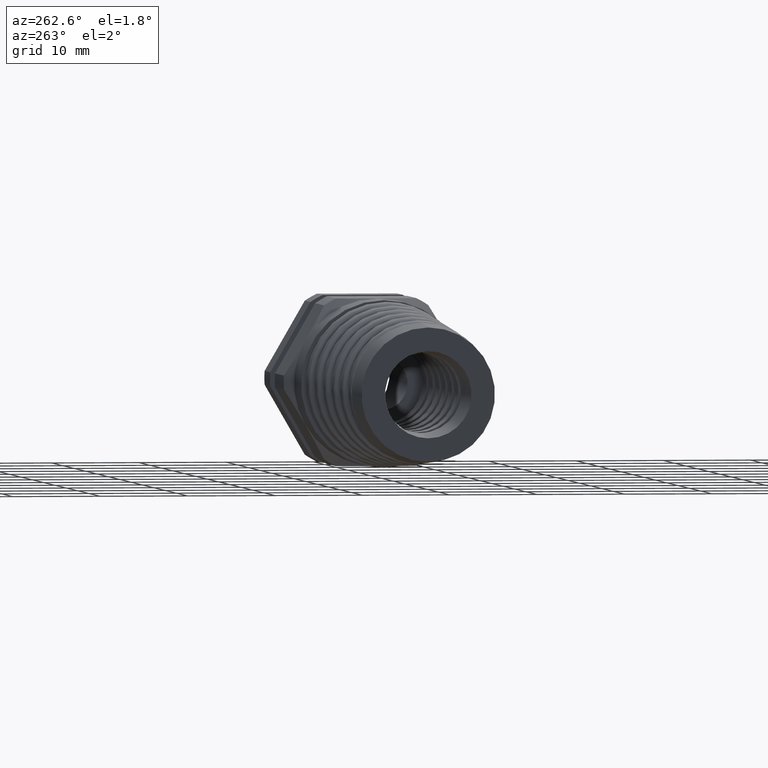
[diagram: clean part render]
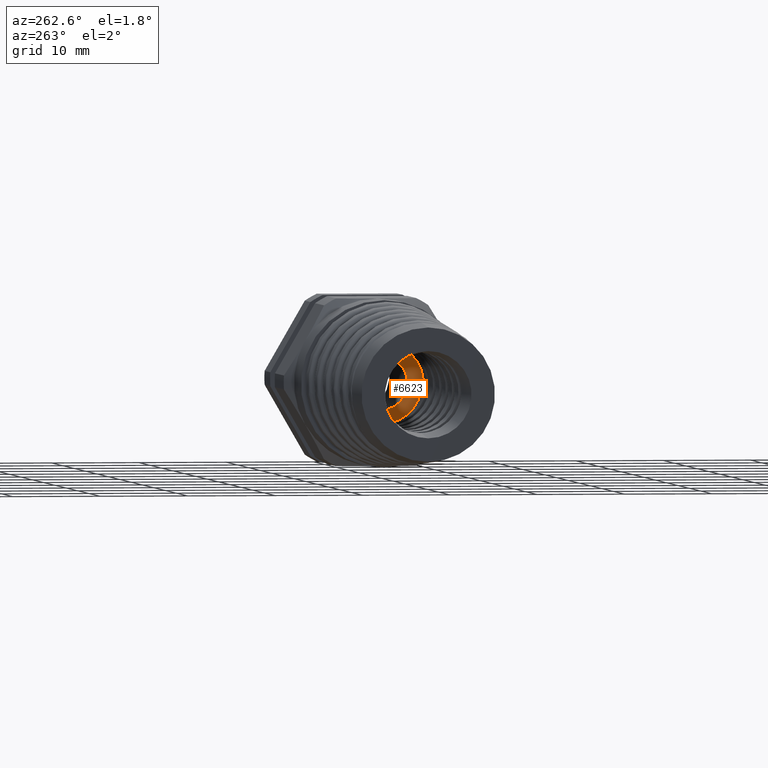
[diagram: same view with one face highlighted and labeled with its STEP entity id]
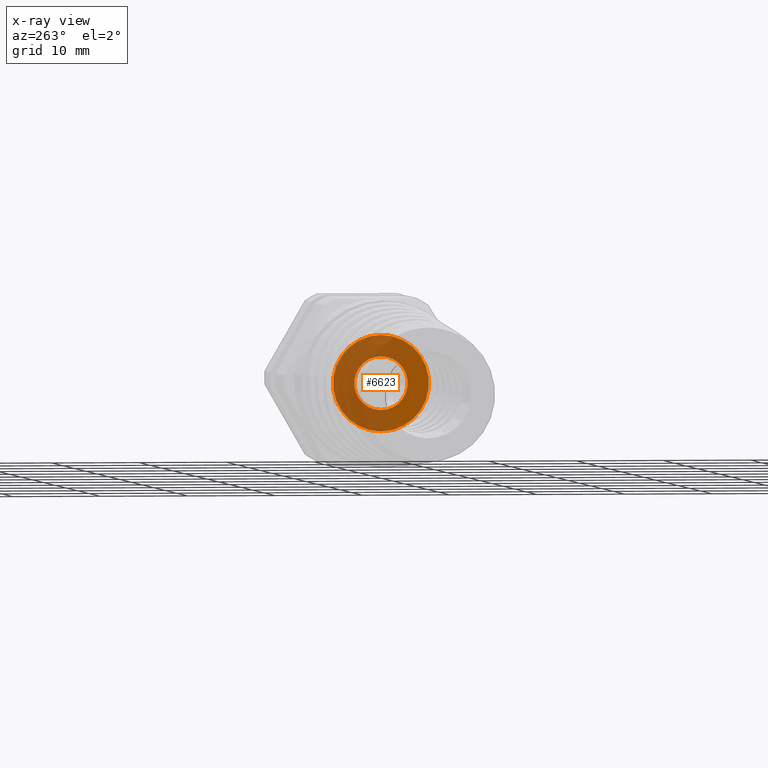
[diagram: x-ray of the same camera — body ghosted, the highlighted face saturated]
A machine part, auxiliary view. The second image highlights one B-rep face of the part: STEP entity #6623.
The next image is the same camera in x-ray: the body ghosted, the highlighted face saturated — about 69% of this face is hidden behind the body in this view.
In plain terms, the highlighted planar face has unit normal (-1, 0, 0).
Its self-contained STEP definition (entity closure, byte-faithful):
#879 = EDGE_CURVE ( 'NONE', #886, #884, #3862, .T. ) ;
#884 = VERTEX_POINT ( 'NONE', #3847 ) ;
#886 = VERTEX_POINT ( 'NONE', #3846 ) ;
#1174 = VERTEX_POINT ( 'NONE', #11481 ) ;
#1218 = VERTEX_POINT ( 'NONE', #11529 ) ;
#1255 = EDGE_CURVE ( 'NONE', #1218, #1174, #11605, .T. ) ;
#3846 = CARTESIAN_POINT ( 'NONE',  ( -1.150000000000000100, 1.469576158976823400E-017, 0.1199999999999999700 ) ) ;
#3847 = CARTESIAN_POINT ( 'NONE',  ( -1.150000000000000100, 0.0000000000000000000, -0.1199999999999999700 ) ) ;
#3858 = DIRECTION ( 'NONE',  ( 0.0000000000000000000, 0.0000000000000000000, -1.000000000000000000 ) ) ;
#3859 = DIRECTION ( 'NONE',  ( 1.000000000000000000, 0.0000000000000000000, 0.0000000000000000000 ) ) ;
#3860 = CARTESIAN_POINT ( 'NONE',  ( -1.150000000000000100, 0.0000000000000000000, 0.0000000000000000000 ) ) ;
#3861 = AXIS2_PLACEMENT_3D ( 'NONE', #3860, #3859, #3858 ) ;
#3862 = CIRCLE ( 'NONE', #3861, 0.1199999999999999700 ) ;
#6545 = EDGE_CURVE ( 'NONE', #884, #886, #8842, .T. ) ;
#6548 = ORIENTED_EDGE ( 'NONE', *, *, #879, .T. ) ;
#6550 = ORIENTED_EDGE ( 'NONE', *, *, #1255, .F. ) ;
#6554 = EDGE_LOOP ( 'NONE', ( #6563, #6548 ) ) ;
#6561 = EDGE_LOOP ( 'NONE', ( #6550, #6594 ) ) ;
#6563 = ORIENTED_EDGE ( 'NONE', *, *, #6545, .T. ) ;
#6594 = ORIENTED_EDGE ( 'NONE', *, *, #6616, .F. ) ;
#6616 = EDGE_CURVE ( 'NONE', #1174, #1218, #8903, .T. ) ;
#6623 = ADVANCED_FACE ( 'NONE', ( #8974, #8973 ), #8968, .T. ) ;
#8838 = DIRECTION ( 'NONE',  ( 0.0000000000000000000, 0.0000000000000000000, -1.000000000000000000 ) ) ;
#8839 = DIRECTION ( 'NONE',  ( 1.000000000000000000, 0.0000000000000000000, 0.0000000000000000000 ) ) ;
#8840 = CARTESIAN_POINT ( 'NONE',  ( -1.150000000000000100, 0.0000000000000000000, 0.0000000000000000000 ) ) ;
#8841 = AXIS2_PLACEMENT_3D ( 'NONE', #8840, #8839, #8838 ) ;
#8842 = CIRCLE ( 'NONE', #8841, 0.1199999999999999700 ) ;
#8900 = DIRECTION ( 'NONE',  ( 0.0000000000000000000, 0.0000000000000000000, -1.000000000000000000 ) ) ;
#8901 = DIRECTION ( 'NONE',  ( 1.000000000000000000, 0.0000000000000000000, 0.0000000000000000000 ) ) ;
#8902 = AXIS2_PLACEMENT_3D ( 'NONE', #8907, #8901, #8900 ) ;
#8903 = CIRCLE ( 'NONE', #8902, 0.2160000000000000000 ) ;
#8907 = CARTESIAN_POINT ( 'NONE',  ( -1.150000000000000100, 0.0000000000000000000, 0.0000000000000000000 ) ) ;
#8964 = DIRECTION ( 'NONE',  ( 0.0000000000000000000, 0.0000000000000000000, 1.000000000000000000 ) ) ;
#8965 = DIRECTION ( 'NONE',  ( -1.000000000000000000, 0.0000000000000000000, 0.0000000000000000000 ) ) ;
#8966 = CARTESIAN_POINT ( 'NONE',  ( -1.150000000000000100, 0.1199999999999999700, 0.0000000000000000000 ) ) ;
#8967 = AXIS2_PLACEMENT_3D ( 'NONE', #8966, #8965, #8964 ) ;
#8968 = PLANE ( 'NONE',  #8967 ) ;
#8973 = FACE_OUTER_BOUND ( 'NONE', #6561, .T. ) ;
#8974 = FACE_BOUND ( 'NONE', #6554, .T. ) ;
#11481 = CARTESIAN_POINT ( 'NONE',  ( -1.150000000000000100, 2.700346192119914000E-017, 0.2160000000000000000 ) ) ;
#11529 = CARTESIAN_POINT ( 'NONE',  ( -1.150000000000000100, 0.0000000000000000000, -0.2160000000000000000 ) ) ;
#11601 = DIRECTION ( 'NONE',  ( 0.0000000000000000000, 0.0000000000000000000, -1.000000000000000000 ) ) ;
#11602 = DIRECTION ( 'NONE',  ( 1.000000000000000000, 0.0000000000000000000, 0.0000000000000000000 ) ) ;
#11603 = CARTESIAN_POINT ( 'NONE',  ( -1.150000000000000100, 0.0000000000000000000, 0.0000000000000000000 ) ) ;
#11604 = AXIS2_PLACEMENT_3D ( 'NONE', #11603, #11602, #11601 ) ;
#11605 = CIRCLE ( 'NONE', #11604, 0.2160000000000000000 ) ;